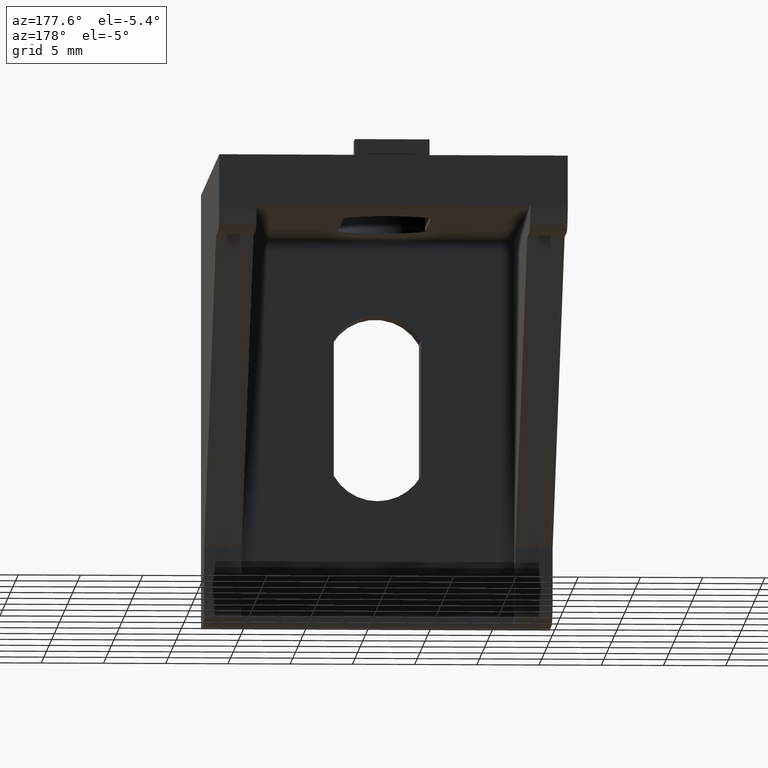
[diagram: clean part render]
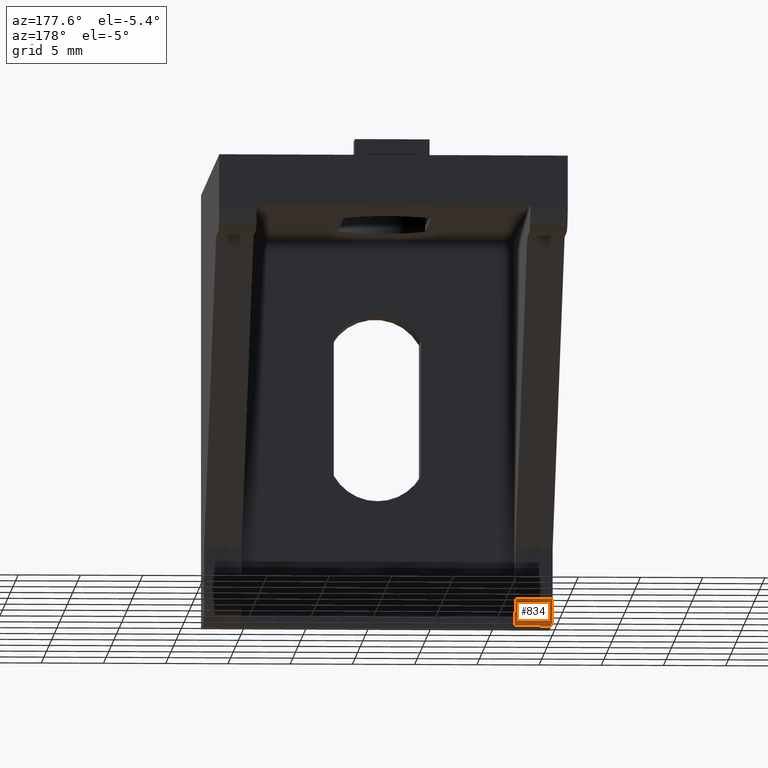
[diagram: same view with one face highlighted and labeled with its STEP entity id]
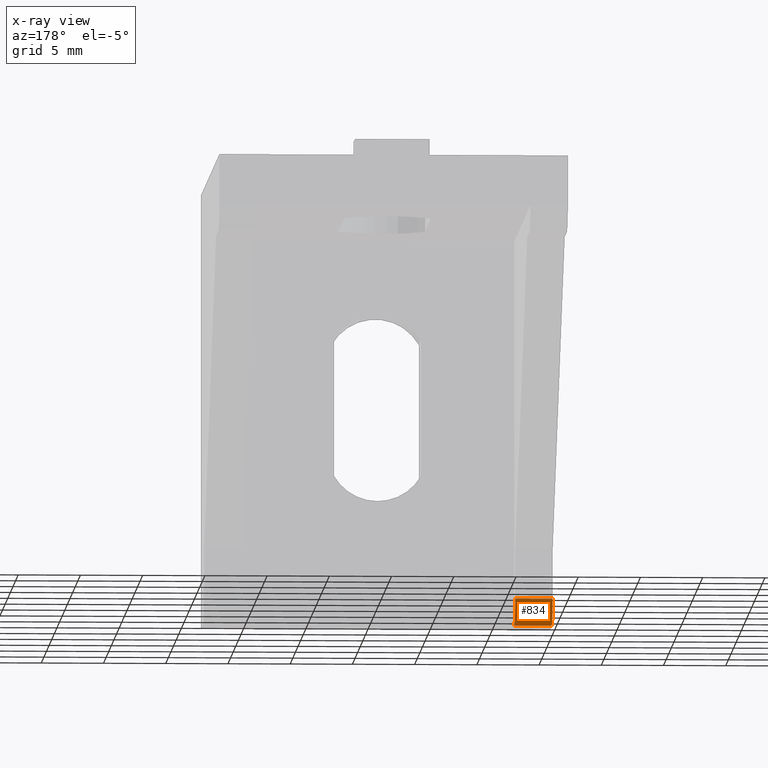
[diagram: x-ray of the same camera — body ghosted, the highlighted face saturated]
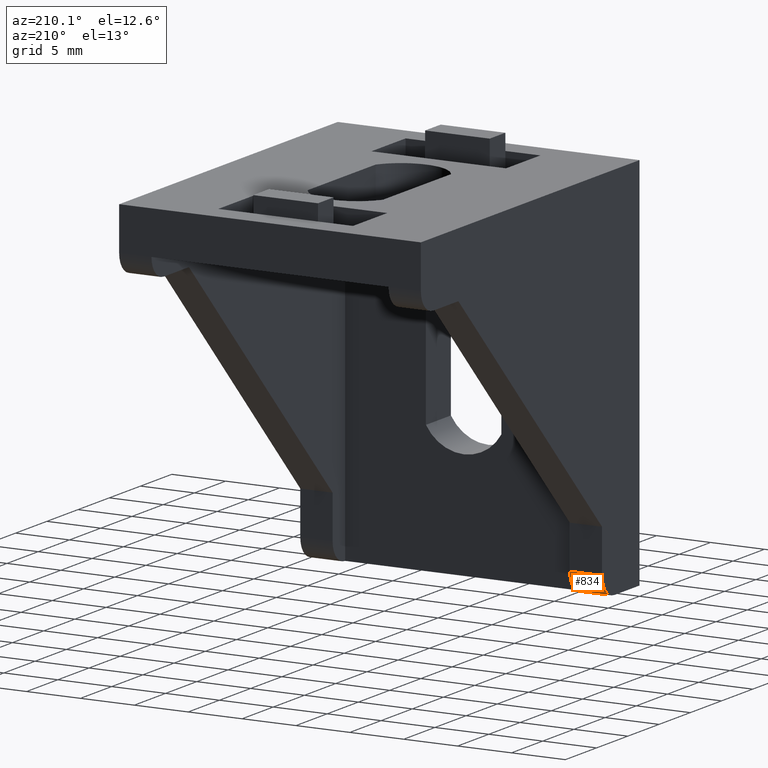
[diagram: same view with one face highlighted and labeled with its STEP entity id]
A machine part, auxiliary view. The second image highlights one B-rep face of the part: STEP entity #834.
The next image is the same camera in x-ray: the body ghosted, the highlighted face saturated — about 0% of this face is hidden behind the body in this view.
A second angle (auxiliary view) of the same face is appended — the face is thin or edge-on in the first view.
In plain terms, the highlighted cylindrical surface (edge-blend (fillet) strip) has radius 2 mm, axis along (-1, 0, 0).
Its self-contained STEP definition (entity closure, byte-faithful):
#289 = CARTESIAN_POINT ( 'NONE',  ( 2.999999999000000400, 4.000000000000000000, -35.00000000000000000 ) ) ;
#295 = CARTESIAN_POINT ( 'NONE',  ( 2.999999999999999100, 6.000000000213001200, -33.00000000020509800 ) ) ;
#296 = CARTESIAN_POINT ( 'NONE',  ( 0.0000000000000000000, 5.999999992500002900, -33.00000000020509800 ) ) ;
#301 = CARTESIAN_POINT ( 'NONE',  ( 0.0000000000000000000, 4.000000000000000000, -35.00000000000000000 ) ) ;
#343 = CARTESIAN_POINT ( 'NONE',  ( 2.999999999999999100, 4.000000000000000000, -33.00000000000000000 ) ) ;
#344 = DIRECTION ( 'NONE',  ( -1.000000000000000000, 0.0000000000000000000, 0.0000000000000000000 ) ) ;
#345 = DIRECTION ( 'NONE',  ( 0.0000000000000000000, 0.0000000000000000000, 1.000000000000000000 ) ) ;
#346 = CARTESIAN_POINT ( 'NONE',  ( 0.0000000000000000000, 4.000000000000000000, -33.00000000000000000 ) ) ;
#347 = DIRECTION ( 'NONE',  ( -1.000000000000000000, 0.0000000000000000000, 0.0000000000000000000 ) ) ;
#348 = DIRECTION ( 'NONE',  ( 0.0000000000000000000, 0.0000000000000000000, 1.000000000000000000 ) ) ;
#349 = CARTESIAN_POINT ( 'NONE',  ( 14.00000000000000000, 4.000000000000000000, -35.00000000000000000 ) ) ;
#350 = DIRECTION ( 'NONE',  ( -1.000000000000000000, -0.0000000000000000000, -0.0000000000000000000 ) ) ;
#357 = CARTESIAN_POINT ( 'NONE',  ( 1.500000000000000000, 6.000000000000005300, -33.00000000041021100 ) ) ;
#358 = DIRECTION ( 'NONE',  ( -1.000000000000000000, 0.0000000000000000000, 0.0000000000000000000 ) ) ;
#466 = FACE_OUTER_BOUND ( 'NONE', #1143, .T. ) ;
#467 = CYLINDRICAL_SURFACE ( 'NONE', #2141, 2.000000000000001800 ) ;
#649 = ORIENTED_EDGE ( 'NONE', *, *, #2254, .T. ) ;
#650 = ORIENTED_EDGE ( 'NONE', *, *, #2260, .F. ) ;
#651 = ORIENTED_EDGE ( 'NONE', *, *, #2255, .F. ) ;
#652 = ORIENTED_EDGE ( 'NONE', *, *, #2256, .T. ) ;
#765 = CARTESIAN_POINT ( 'NONE',  ( 3.000000000000000000, 4.000000000000000000, -33.00000000000000000 ) ) ;
#766 = DIRECTION ( 'NONE',  ( -1.000000000000000000, 0.0000000000000000000, 0.0000000000000000000 ) ) ;
#767 = DIRECTION ( 'NONE',  ( 0.0000000000000000000, 0.0000000000000000000, 1.000000000000000000 ) ) ;
#834 = ADVANCED_FACE ( 'NONE', ( #466 ), #467, .T. ) ;
#1143 = EDGE_LOOP ( 'NONE', ( #652, #651, #650, #649 ) ) ;
#1463 = VECTOR ( 'NONE', #358, 1000.000000000000000 ) ;
#1470 = LINE ( 'NONE', #357, #1463 ) ;
#1481 = VECTOR ( 'NONE', #350, 1000.000000000000000 ) ;
#1482 = CIRCLE ( 'NONE', #2167, 2.000000000000001800 ) ;
#1484 = LINE ( 'NONE', #349, #1481 ) ;
#1485 = CIRCLE ( 'NONE', #2168, 2.000000000000001800 ) ;
#2141 = AXIS2_PLACEMENT_3D ( 'NONE', #765, #766, #767 ) ;
#2167 = AXIS2_PLACEMENT_3D ( 'NONE', #346, #347, #348 ) ;
#2168 = AXIS2_PLACEMENT_3D ( 'NONE', #343, #344, #345 ) ;
#2210 = VERTEX_POINT ( 'NONE', #289 ) ;
#2216 = VERTEX_POINT ( 'NONE', #295 ) ;
#2217 = VERTEX_POINT ( 'NONE', #296 ) ;
#2222 = VERTEX_POINT ( 'NONE', #301 ) ;
#2254 = EDGE_CURVE ( 'NONE', #2216, #2210, #1485, .T. ) ;
#2255 = EDGE_CURVE ( 'NONE', #2217, #2222, #1482, .T. ) ;
#2256 = EDGE_CURVE ( 'NONE', #2210, #2222, #1484, .T. ) ;
#2260 = EDGE_CURVE ( 'NONE', #2216, #2217, #1470, .T. ) ;